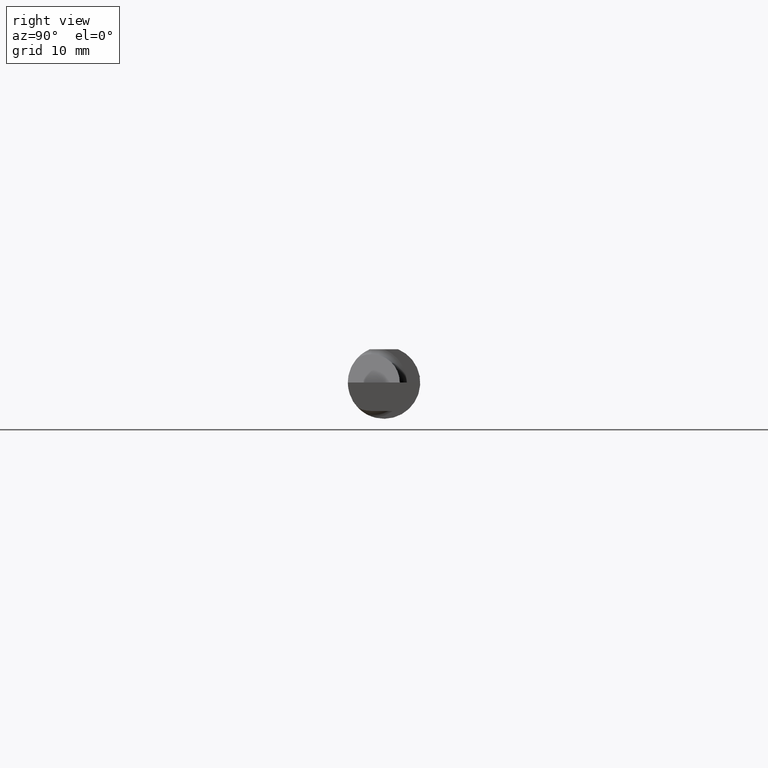
[diagram: clean part render]
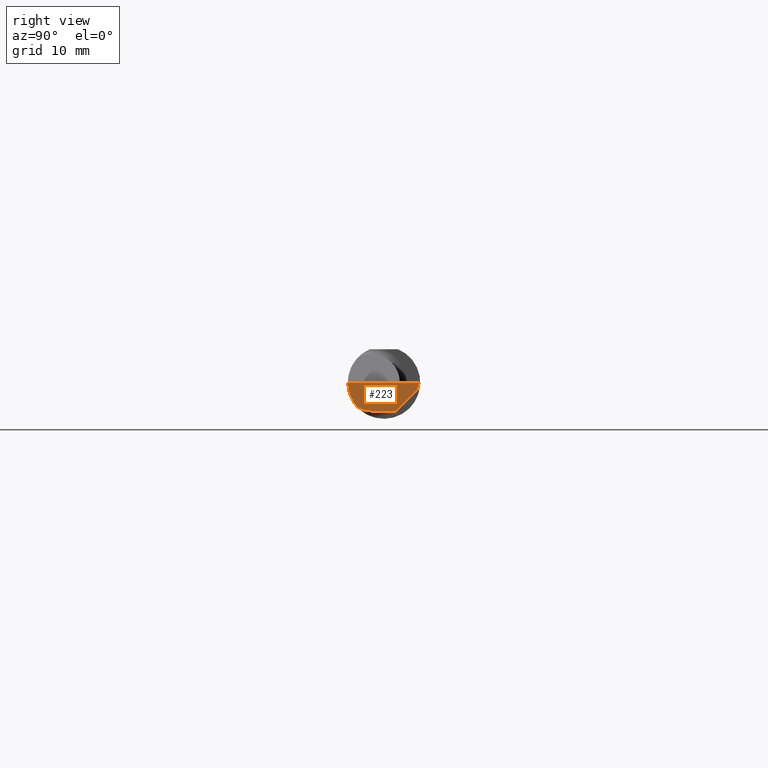
[diagram: same view with one face highlighted and labeled with its STEP entity id]
A machine part, right view. The second image highlights one B-rep face of the part: STEP entity #223.
In plain terms, the highlighted planar face has unit normal (-0.9995, 0.0174, 0.0262).
Its self-contained STEP definition (entity closure, byte-faithful):
#11 = CARTESIAN_POINT ( 'NONE',  ( 2.494033449660867152, -0.09015216647662485649, -0.08637192471845764330 ) ) ;
#13 = CARTESIAN_POINT ( 'NONE',  ( 2.493072779947982820, -0.1248043149033065402, -0.09996577117162359916 ) ) ;
#33 = CARTESIAN_POINT ( 'NONE',  ( 2.494082244196984099, -0.07583965973232818791, -0.09404455760388207020 ) ) ;
#41 = CARTESIAN_POINT ( 'NONE',  ( 2.496652745773396020, 0.07741163850316090667, -0.09800000000000001765 ) ) ;
#42 = VERTEX_POINT ( 'NONE', #320 ) ;
#91 = CARTESIAN_POINT ( 'NONE',  ( 2.497382703856816377, 0.1221956850741156286, -0.09996573249755572044 ) ) ;
#95 = DIRECTION ( 'NONE',  ( -0.01744642479411464067, -0.9998477995484629233, 2.816882764651547739E-16 ) ) ;
#100 = LINE ( 'NONE', #41, #230 ) ;
#104 = FACE_OUTER_BOUND ( 'NONE', #611, .T. ) ;
#108 = ORIENTED_EDGE ( 'NONE', *, *, #639, .F. ) ;
#114 = VERTEX_POINT ( 'NONE', #504 ) ;
#118 = DIRECTION ( 'NONE',  ( 0.01744642479411464761, 0.9998477995484629233, -2.135106780035675284E-18 ) ) ;
#123 = LINE ( 'NONE', #183, #574 ) ;
#128 = VERTEX_POINT ( 'NONE', #11 ) ;
#132 = CARTESIAN_POINT ( 'NONE',  ( 2.499132853025171297, 0.1117231085775382687, -0.02616302870350971019 ) ) ;
#156 = CARTESIAN_POINT ( 'NONE',  ( 2.495688583004118666, -0.1248499869621840785, -5.705736120969982501E-05 ) ) ;
#159 = CARTESIAN_POINT ( 'NONE',  ( 2.499907402661638578, 0.1211597610527450630, -0.002875862722116008779 ) ) ;
#161 = ORIENTED_EDGE ( 'NONE', *, *, #197, .T. ) ;
#177 = ORIENTED_EDGE ( 'NONE', *, *, #575, .F. ) ;
#183 = CARTESIAN_POINT ( 'NONE',  ( 2.494380489674781209, -0.1999019447116721915, 6.881915332554903690E-19 ) ) ;
#187 = EDGE_CURVE ( 'NONE', #42, #114, #100, .T. ) ;
#197 = EDGE_CURVE ( 'NONE', #128, #114, #698, .T. ) ;
#202 = CARTESIAN_POINT ( 'NONE',  ( 2.499227245409318954, 0.1138861372810479888, -0.02400000000000000050 ) ) ;
#221 = DIRECTION ( 'NONE',  ( 0.02618093032612054533, 0.000000000000000000, 0.9996572206948034500 ) ) ;
#223 = ADVANCED_FACE ( 'NONE', ( #104 ), #700, .F. ) ;
#230 = VECTOR ( 'NONE', #95, 39.37007874015748854 ) ;
#234 = CARTESIAN_POINT ( 'NONE',  ( 2.495690077103728921, -0.1248499999950965084, 1.733801157256528502E-17 ) ) ;
#258 = VERTEX_POINT ( 'NONE', #234 ) ;
#292 = ORIENTED_EDGE ( 'NONE', *, *, #517, .F. ) ;
#309 =( BOUNDED_CURVE ( )  B_SPLINE_CURVE ( 3, ( #346, #410, #703, #156 ),
 .UNSPECIFIED., .F., .F. ) 
 B_SPLINE_CURVE_WITH_KNOTS ( ( 4, 4 ),
 ( 0.2190942387645160583, 0.9826237902196512941 ),
 .UNSPECIFIED. ) 
 CURVE ( )  GEOMETRIC_REPRESENTATION_ITEM ( )  RATIONAL_B_SPLINE_CURVE ( ( 1.000000000000000000, 0.9520057322288819623, 0.9520057322288819623, 1.000000000000000000 ) ) 
 REPRESENTATION_ITEM ( '' )  );
#320 = CARTESIAN_POINT ( 'NONE',  ( 2.495997960279815686, 0.03988613728104775658, -0.09799999999999996214 ) ) ;
#340 = ORIENTED_EDGE ( 'NONE', *, *, #650, .F. ) ;
#346 = CARTESIAN_POINT ( 'NONE',  ( 2.494033449660867152, -0.09015216647662485649, -0.08637192471845764330 ) ) ;
#354 = LINE ( 'NONE', #159, #699 ) ;
#357 = CARTESIAN_POINT ( 'NONE',  ( 2.495688583004118666, -0.1248499869621840785, -5.705736120969982501E-05 ) ) ;
#366 = EDGE_CURVE ( 'NONE', #258, #471, #123, .T. ) ;
#410 = CARTESIAN_POINT ( 'NONE',  ( 2.494256244271084721, -0.1126860773865890758, -0.06285177167860768466 ) ) ;
#446 = LINE ( 'NONE', #132, #779 ) ;
#456 = ORIENTED_EDGE ( 'NONE', *, *, #366, .F. ) ;
#471 = VERTEX_POINT ( 'NONE', #684 ) ;
#475 = CARTESIAN_POINT ( 'NONE',  ( 2.494253479596434175, -0.06008937020638529386, -0.09799999999999998990 ) ) ;
#476 = VERTEX_POINT ( 'NONE', #202 ) ;
#503 = DIRECTION ( 'NONE',  ( -0.03084274406794521375, -0.7067703747110382073, -0.7067703747110356538 ) ) ;
#504 = CARTESIAN_POINT ( 'NONE',  ( 2.494536841675280670, -0.04385000000000003478, -0.09799999999999998990 ) ) ;
#517 = EDGE_CURVE ( 'NONE', #774, #258, #558, .T. ) ;
#548 = AXIS2_PLACEMENT_3D ( 'NONE', #91, #765, #221 ) ;
#558 = LINE ( 'NONE', #13, #734 ) ;
#574 = VECTOR ( 'NONE', #118, 39.37007874015748854 ) ;
#575 = EDGE_CURVE ( 'NONE', #476, #42, #446, .T. ) ;
#584 = CARTESIAN_POINT ( 'NONE',  ( 2.494033449660867152, -0.09015216647662485649, -0.08637192471845764330 ) ) ;
#608 = ORIENTED_EDGE ( 'NONE', *, *, #187, .F. ) ;
#611 = EDGE_LOOP ( 'NONE', ( #161, #608, #177, #108, #456, #292, #340 ) ) ;
#639 = EDGE_CURVE ( 'NONE', #471, #476, #354, .T. ) ;
#650 = EDGE_CURVE ( 'NONE', #128, #774, #309, .T. ) ;
#684 = CARTESIAN_POINT ( 'NONE',  ( 2.500000000000000444, 0.1221499999999999808, 1.947508823608312588E-17 ) ) ;
#697 = DIRECTION ( 'NONE',  ( -0.03042981077198583101, -0.3254173858243484818, -0.9450807116958995779 ) ) ;
#698 =( BOUNDED_CURVE ( )  B_SPLINE_CURVE ( 3, ( #584, #33, #475, #773 ),
 .UNSPECIFIED., .F., .F. ) 
 B_SPLINE_CURVE_WITH_KNOTS ( ( 4, 4 ),
 ( 0.09562308769844124479, 0.5877155292609013149 ),
 .UNSPECIFIED. ) 
 CURVE ( )  GEOMETRIC_REPRESENTATION_ITEM ( )  RATIONAL_B_SPLINE_CURVE ( ( 1.000000000000000000, 0.9799220177372778284, 0.9799220177372778284, 1.000000000000000000 ) ) 
 REPRESENTATION_ITEM ( '' )  );
#699 = VECTOR ( 'NONE', #697, 39.37007874015748854 ) ;
#700 = PLANE ( 'NONE',  #548 ) ;
#703 = CARTESIAN_POINT ( 'NONE',  ( 2.494835769263151537, -0.1248351010429638308, -0.03262966116142155398 ) ) ;
#734 = VECTOR ( 'NONE', #741, 39.37007874015748854 ) ;
#741 = DIRECTION ( 'NONE',  ( 0.02617296143184116158, -0.0004568507411563387400, 0.9996573249755575929 ) ) ;
#765 = DIRECTION ( 'NONE',  ( -0.9995051766793262571, 0.01744044634007211117, 0.02617694830739122208 ) ) ;
#773 = CARTESIAN_POINT ( 'NONE',  ( 2.494536841675280670, -0.04385000000000003478, -0.09799999999999998990 ) ) ;
#774 = VERTEX_POINT ( 'NONE', #357 ) ;
#779 = VECTOR ( 'NONE', #503, 39.37007874015748854 ) ;